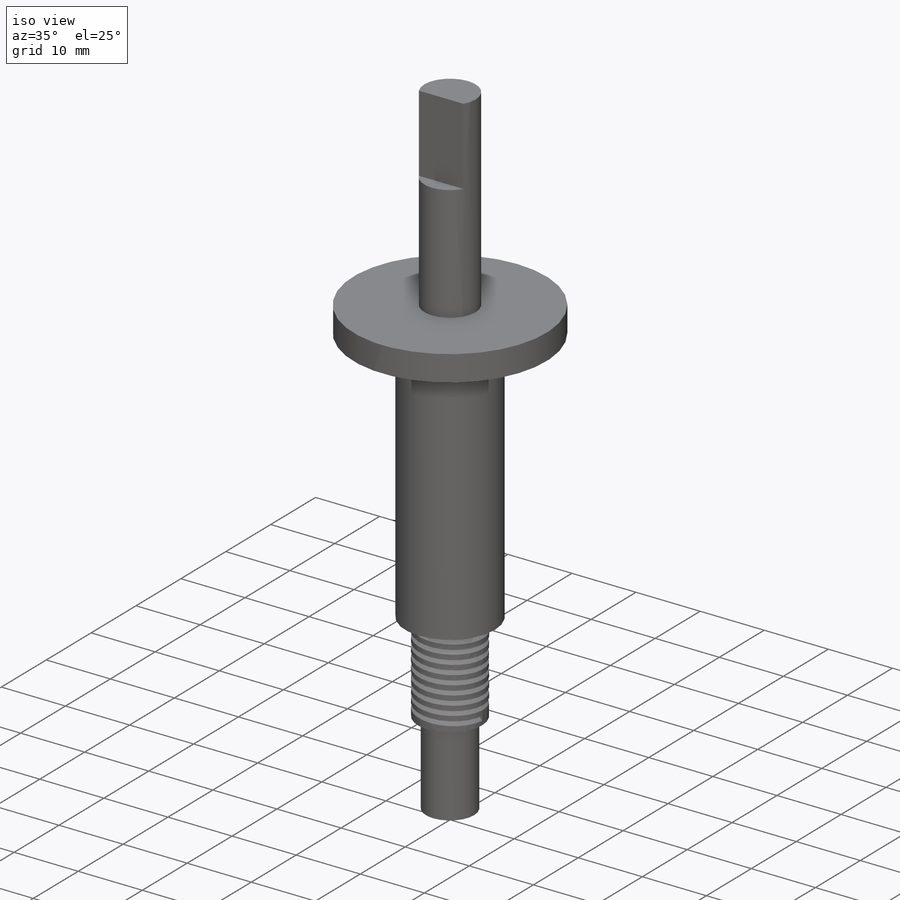
[diagram: iso view]
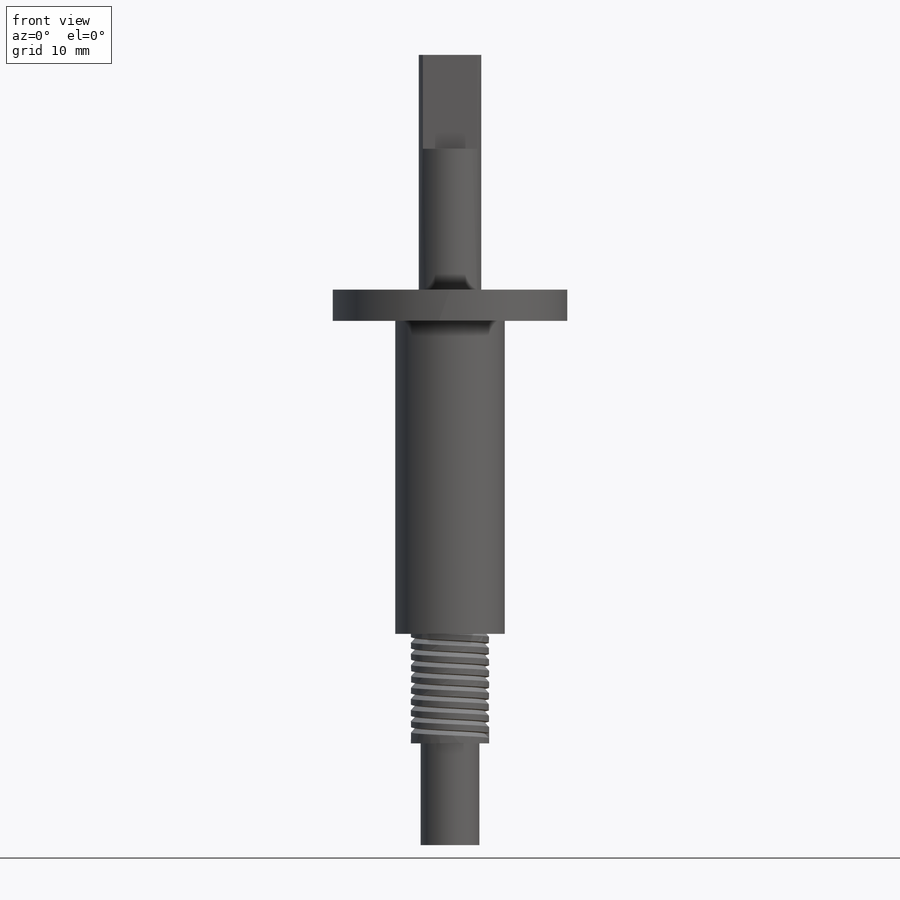
[diagram: front view]
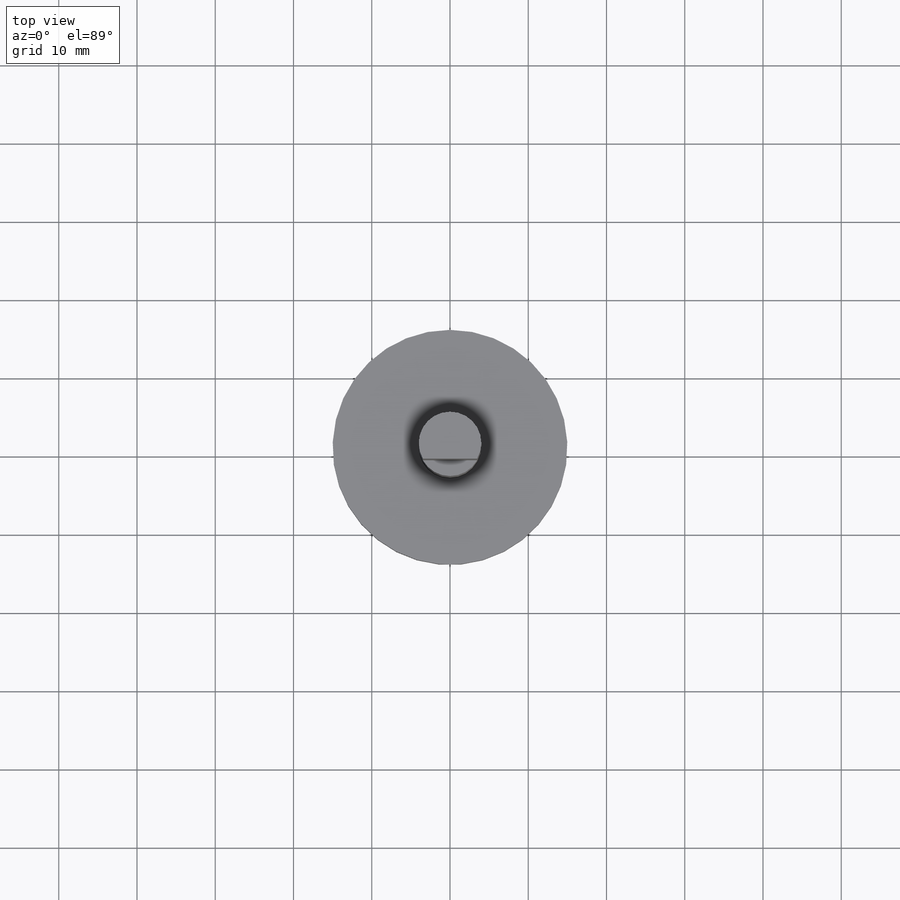
[diagram: top view]
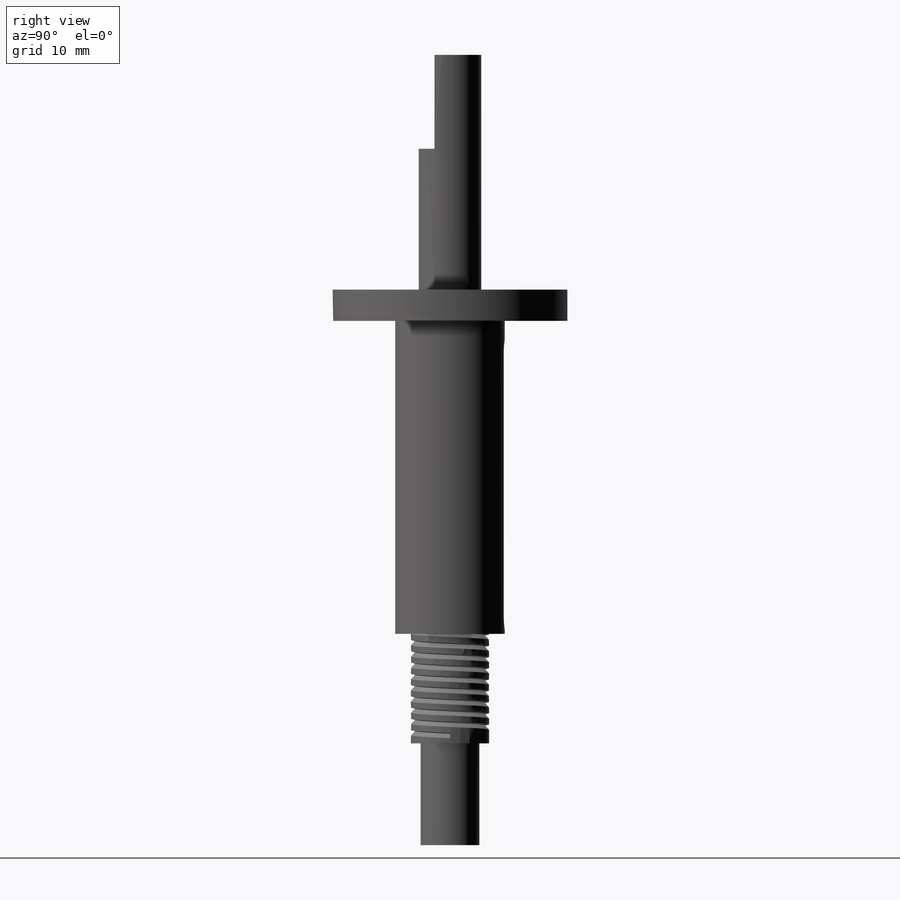
[diagram: right view]
SOLIDWORKS PART (.sldprt)
format: sldprt  version: not decoded by parser v0  size: 337,920 bytes
history: native  units: mm
features: sketch x10, cut_extrude x6, plane x3, material x1, extrude x1, helix x1, sweep x1 (+12 scaffold rows collapsed)
feature tree (35):
  scaffold x12  (default folders/planes/origin — collapsed)
  material  "Material <not specified>"
  sketch  "Sketch1"  dims[D1=30.0mm]
  extrude  "Boss-Extrude1"  Depth=101mm
  sketch  "Sketch2"  dims[D1=8.0mm]
  cut_extrude  "Cut-Extrude1"  Depth=30mm
  sketch  "Sketch3"  dims[D1=14.0mm]
  cut_extrude  "Cut-Extrude2"  Depth=67mm
  sketch  "Sketch4"  dims[D1=10.0mm]
  cut_extrude  "Cut-Extrude5"  Depth=27mm
  sketch  "Sketch6"  dims[D1=7.5mm]
  cut_extrude  "Cut-Extrude6"  Depth=13mm
  sketch  "Sketch8"  dims[D1=10.0mm]
  helix  "Helix/Spiral1"  Pitch=13.65625mm
  plane  "Plane3"
  sketch  "Sketch9"
  sweep  "Cut-Sweep1"
  sketch  "Sketch10"  dims[D1=~10.564578mm]
  cut_extrude  "Cut-Extrude7"  Depth=12mm
  sketch  "Sketch11"  dims[D1=~16.16831mm]
  plane  "Plane4"
  plane  "Plane5"  Offset=5mm
  sketch  "Sketch12"  dims[c1.D3=1.75mm c1.D1=~31.112726mm c1.D2=~7.125338mm c2.D1=34.8632mm c2.D2=~5.892952mm c3.D1=34.0mm c3.D2=3.5mm c3.D3=36.5mm]
  cut_extrude  "Cut-Extrude8"  Depth=10mm
decode coverage: 17 of 19 modeling features carry decoded parameters
note: ~ marks probable driven/reference dimensions
note: suppression state not decoded; provenance and decode notes live in map.json
